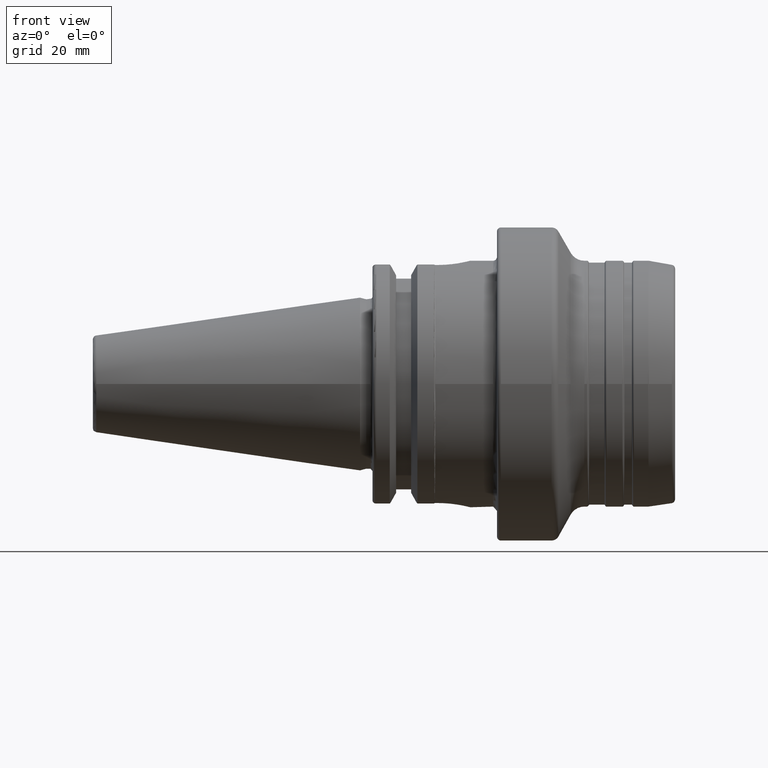
[diagram: clean part render]
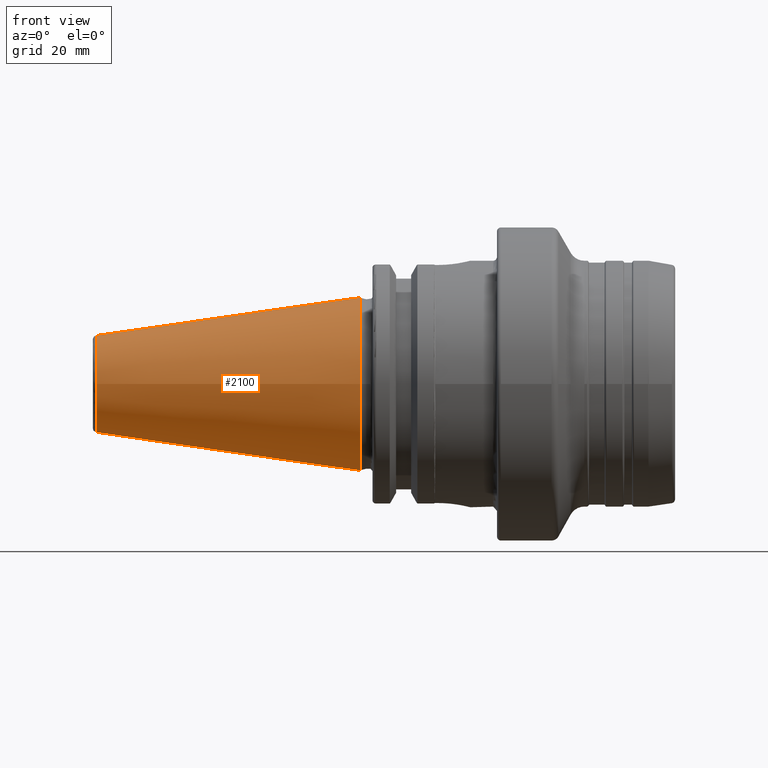
[diagram: same view with one face highlighted and labeled with its STEP entity id]
A machine part, front view. The second image highlights one B-rep face of the part: STEP entity #2100.
In plain terms, the highlighted conical surface has half-angle 8.297 deg.
Its self-contained STEP definition (entity closure, byte-faithful):
#169=LINE('',#4021,#258);
#258=VECTOR('',#3005,17.2484375);
#387=FACE_OUTER_BOUND('',#501,.T.);
#501=EDGE_LOOP('',(#1839,#1840,#1841,#1842,#1843,#1844,#1845));
#687=CIRCLE('',#2384,12.3966635780937);
#688=CIRCLE('',#2385,12.3966635780937);
#692=CIRCLE('',#2389,12.3966635780937);
#695=CIRCLE('',#2394,22.225);
#696=CIRCLE('',#2395,22.225);
#960=VERTEX_POINT('',#4000);
#961=VERTEX_POINT('',#4001);
#962=VERTEX_POINT('',#4003);
#967=VERTEX_POINT('',#4017);
#968=VERTEX_POINT('',#4018);
#1270=EDGE_CURVE('',#960,#961,#687,.T.);
#1271=EDGE_CURVE('',#961,#962,#688,.T.);
#1275=EDGE_CURVE('',#962,#960,#692,.T.);
#1278=EDGE_CURVE('',#967,#968,#695,.T.);
#1279=EDGE_CURVE('',#968,#967,#696,.T.);
#1280=EDGE_CURVE('',#968,#961,#169,.T.);
#1839=ORIENTED_EDGE('',*,*,#1278,.F.);
#1840=ORIENTED_EDGE('',*,*,#1279,.F.);
#1841=ORIENTED_EDGE('',*,*,#1280,.T.);
#1842=ORIENTED_EDGE('',*,*,#1270,.F.);
#1843=ORIENTED_EDGE('',*,*,#1275,.F.);
#1844=ORIENTED_EDGE('',*,*,#1271,.F.);
#1845=ORIENTED_EDGE('',*,*,#1280,.F.);
#2015=CONICAL_SURFACE('',#2393,17.2484375,0.144812498238939);
#2100=ADVANCED_FACE('',(#387),#2015,.T.);
#2384=AXIS2_PLACEMENT_3D('',#4002,#2981,#2982);
#2385=AXIS2_PLACEMENT_3D('',#4004,#2983,#2984);
#2389=AXIS2_PLACEMENT_3D('',#4010,#2991,#2992);
#2393=AXIS2_PLACEMENT_3D('',#4016,#2999,#3000);
#2394=AXIS2_PLACEMENT_3D('',#4019,#3001,#3002);
#2395=AXIS2_PLACEMENT_3D('',#4020,#3003,#3004);
#2981=DIRECTION('center_axis',(-1.,0.,0.));
#2982=DIRECTION('ref_axis',(0.,-1.,3.06161699786838E-17));
#2983=DIRECTION('center_axis',(-1.,0.,0.));
#2984=DIRECTION('ref_axis',(0.,-1.,3.06161699786838E-17));
#2991=DIRECTION('center_axis',(-1.,0.,0.));
#2992=DIRECTION('ref_axis',(0.,-1.,3.06161699786838E-17));
#2999=DIRECTION('center_axis',(1.,0.,0.));
#3000=DIRECTION('ref_axis',(0.,1.,0.));
#3001=DIRECTION('center_axis',(1.,0.,0.));
#3002=DIRECTION('ref_axis',(0.,0.,-1.));
#3003=DIRECTION('center_axis',(1.,0.,0.));
#3004=DIRECTION('ref_axis',(0.,0.,-1.));
#3005=DIRECTION('',(-0.989532981063282,0.144306893071729,1.76724974695192E-17));
#4000=CARTESIAN_POINT('',(-67.3943068930717,12.3966635780937,-3.79538359275475E-15));
#4001=CARTESIAN_POINT('',(-67.3943068930718,-12.3966635780937,-1.5181534371019E-15));
#4002=CARTESIAN_POINT('Origin',(-67.3943068930717,0.,-1.89769179637738E-15));
#4003=CARTESIAN_POINT('',(-67.3943068930717,-1.5181534371019E-15,12.3966635780937));
#4004=CARTESIAN_POINT('Origin',(-67.3943068930717,0.,-1.89769179637738E-15));
#4010=CARTESIAN_POINT('Origin',(-67.3943068930717,0.,-1.89769179637738E-15));
#4016=CARTESIAN_POINT('Origin',(-34.125,0.,0.));
#4017=CARTESIAN_POINT('',(0.,22.225,0.));
#4018=CARTESIAN_POINT('',(0.,-22.225,-2.72177751110499E-15));
#4019=CARTESIAN_POINT('Origin',(0.,0.,0.));
#4020=CARTESIAN_POINT('Origin',(0.,0.,0.));
#4021=CARTESIAN_POINT('',(-34.125,-17.2484375,-2.11232437746682E-15));